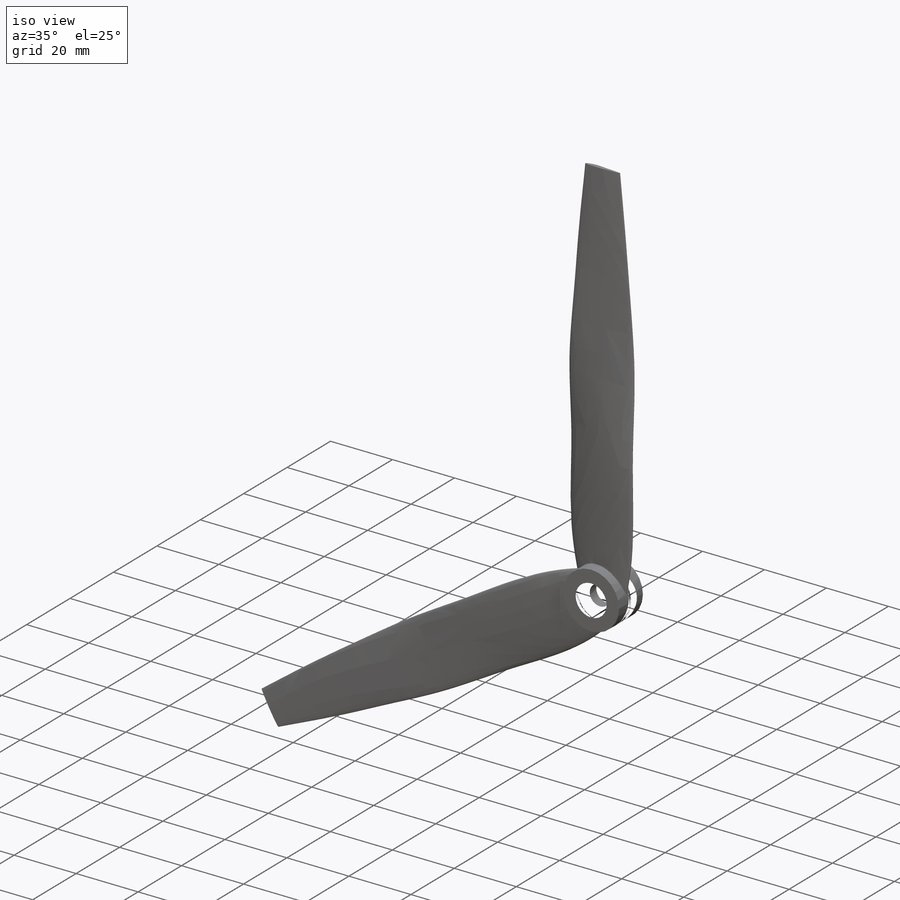
[diagram: iso view]
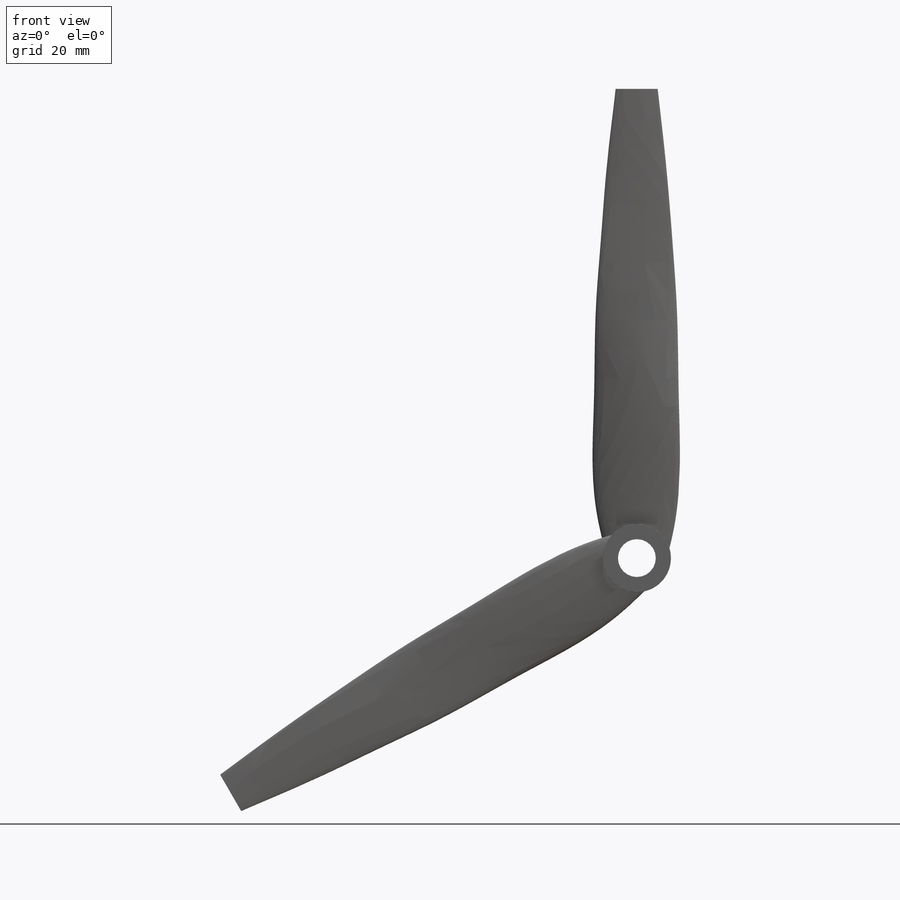
[diagram: front view]
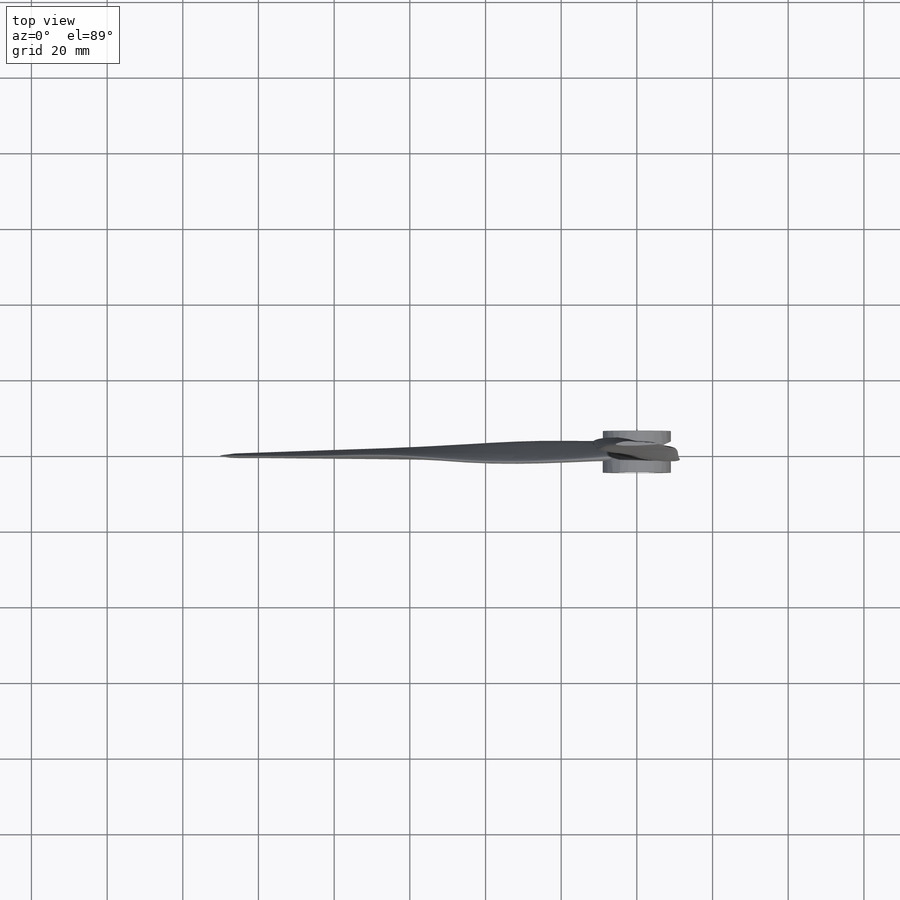
[diagram: top view]
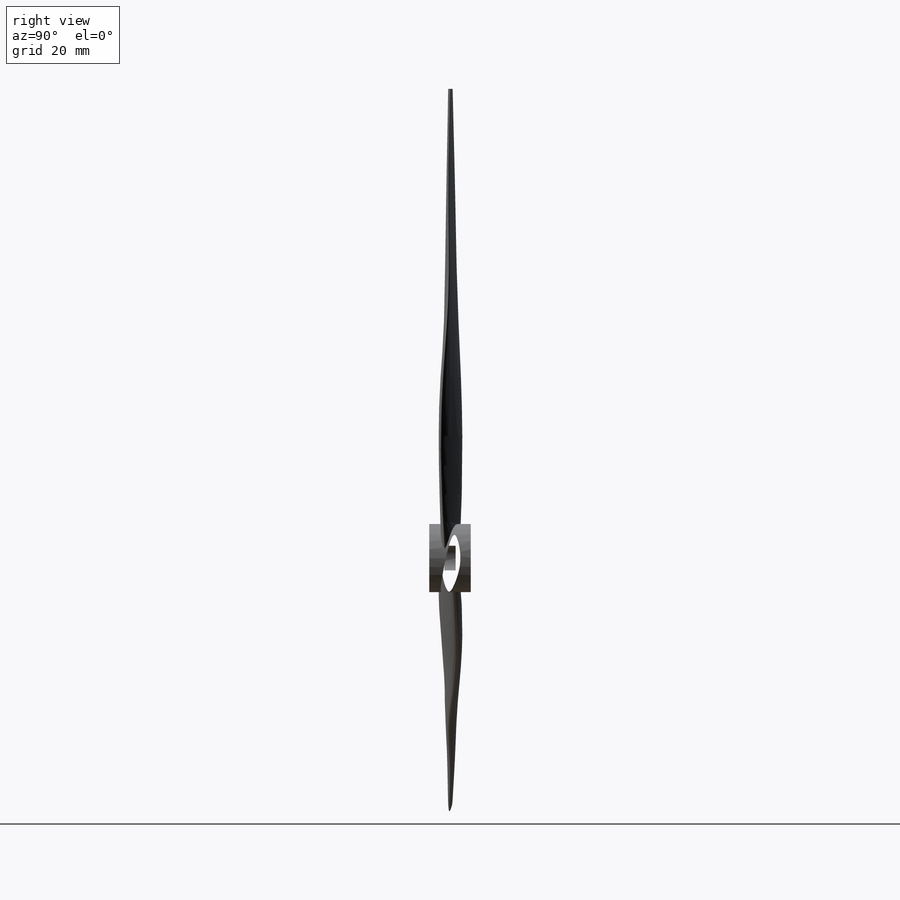
[diagram: right view]
SOLIDWORKS PART (.sldprt)
format: sldprt  version: not decoded by parser v0  size: 1,041,408 bytes
history: native  units: mm
features: sketch x9, plane x8, cut_extrude x2, material x1, extrude x1, pattern_circular x1, mirror x1 (+9 scaffold rows collapsed)
feature tree (32):
  scaffold x9  (default folders/planes/origin — collapsed)
  material  "Plástico personalizado"
  plane  "Plano frontal"
  plane  "Plano superior"
  plane  "Plano direito"
  sketch  "Esboço1"  dims[D1=18.0mm]
  extrude  "Ressalto-extrusão1"  Depth=11mm
  sketch  "Esboço2"  dims[D1=16.0mm D2=4.0mm D3=4.0mm D4=180.0mm]
  plane  "Plano1"  Offset=15mm
  sketch  "Esboço3"  dims[D1=22.0mm]
  plane  "Plano2"  Offset=28mm
  sketch  "Esboço5"  dims[c1.D1=~239.497317mm c2.D1=~90.041879deg c3.D1=22.5mm]
  plane  "Plano3"  Offset=24mm
  sketch  "Esboço6"  dims[D1=21.0mm D2=5.0mm D3=3.0mm]
  plane  "Plano4"  Offset=28mm
  plane  "Plano5"  Offset=29mm
  sketch  "Esboço8"  dims[D1=11.0mm D2=1.0mm]
  sketch  "Esboço7"  dims[D1=17.0mm D2=2.0mm]
  pattern_circular  "PadrãoCircular1"  Count=3  [1 undecoded]
  sketch  "Esboço9"  dims[D1=6.5mm]
  cut_extrude  "Corte-extrusão1"  [1 undecoded]
  sketch  "Esboço10"  dims[D1=10.0mm]
  cut_extrude  "Corte-extrusão2"  Depth=4mm
  mirror  "Espelhar1"
decode coverage: 12 of 14 modeling features carry decoded parameters
note: ~ marks probable driven/reference dimensions
note: 2 parameter values undecoded
note: suppression state not decoded; provenance and decode notes live in map.json
